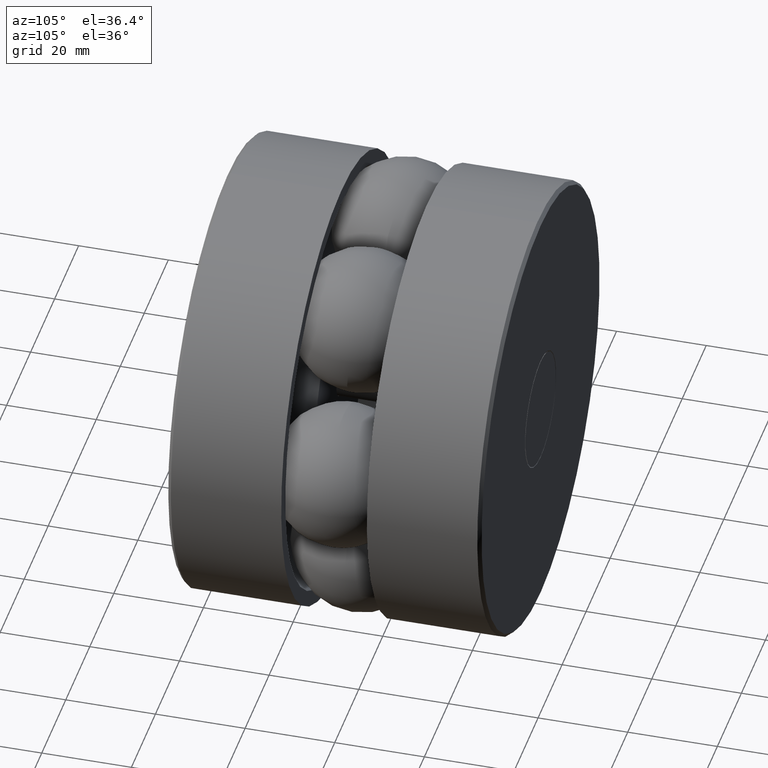
[diagram: clean part render]
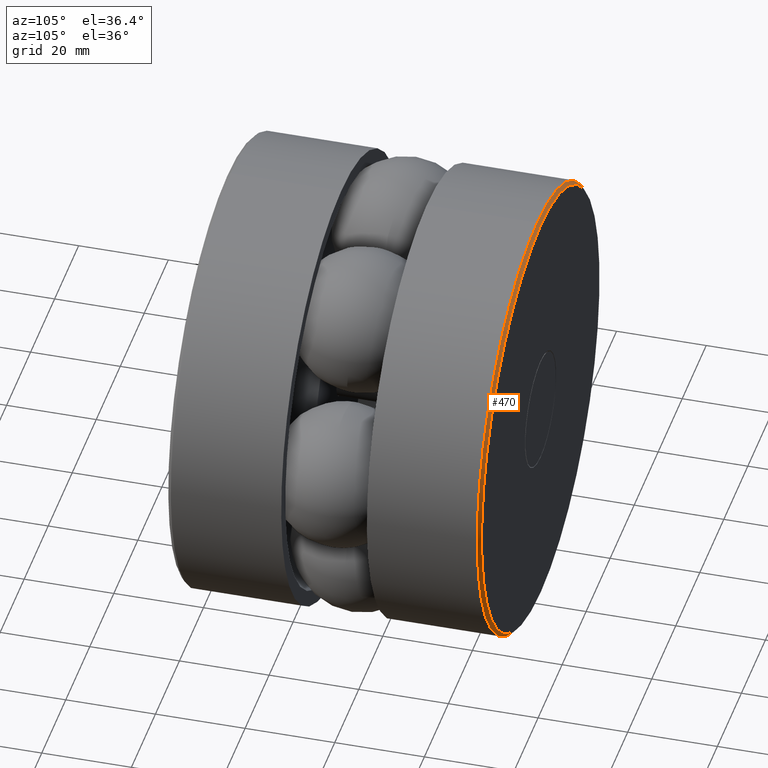
[diagram: same view with one face highlighted and labeled with its STEP entity id]
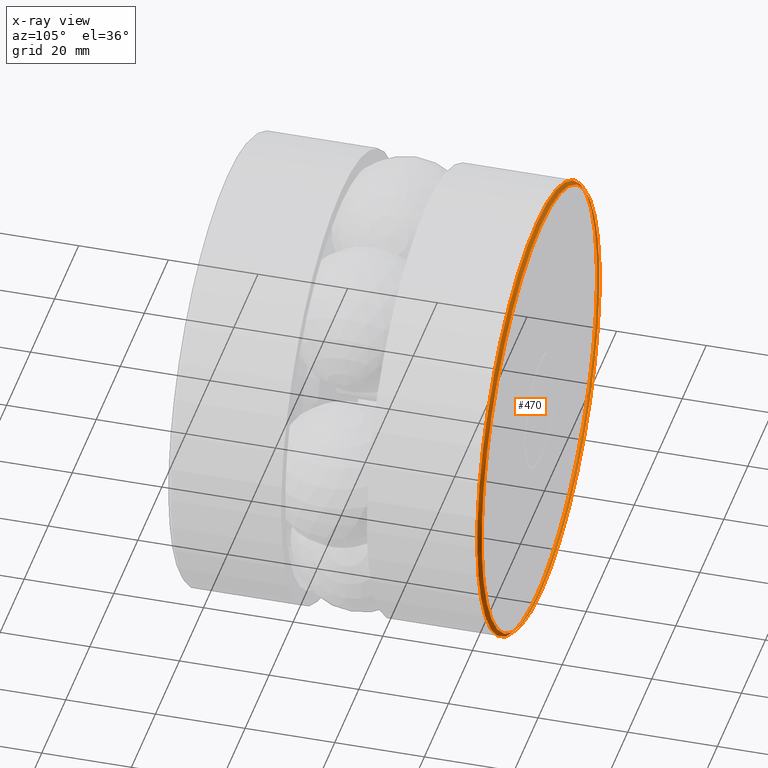
[diagram: x-ray of the same camera — body ghosted, the highlighted face saturated]
A machine part, auxiliary view. The second image highlights one B-rep face of the part: STEP entity #470.
The next image is the same camera in x-ray: the body ghosted, the highlighted face saturated — about 0% of this face is hidden behind the body in this view.
In plain terms, the highlighted conical surface has half-angle 45 deg.
Its self-contained STEP definition (entity closure, byte-faithful):
#22 = CIRCLE ( 'NONE', #81, 1.962000000000000000 ) ;
#39 = DIRECTION ( 'NONE',  ( 0.0000000000000000000, -1.000000000000000000, 0.0000000000000000000 ) ) ;
#41 = DIRECTION ( 'NONE',  ( -0.0000000000000000000, 1.000000000000000000, -0.0000000000000000000 ) ) ;
#66 = AXIS2_PLACEMENT_3D ( 'NONE', #168, #41, #507 ) ;
#81 = AXIS2_PLACEMENT_3D ( 'NONE', #345, #96, #426 ) ;
#83 = CIRCLE ( 'NONE', #66, 1.932000000000000400 ) ;
#96 = DIRECTION ( 'NONE',  ( -0.0000000000000000000, 1.000000000000000000, -0.0000000000000000000 ) ) ;
#160 = CARTESIAN_POINT ( 'NONE',  ( 0.0000000000000000000, 2.750000000000000000, 1.932000000000000400 ) ) ;
#168 = CARTESIAN_POINT ( 'NONE',  ( 0.0000000000000000000, 2.750000000000000000, 0.0000000000000000000 ) ) ;
#251 = DIRECTION ( 'NONE',  ( 0.0000000000000000000, 0.0000000000000000000, -1.000000000000000000 ) ) ;
#264 = ORIENTED_EDGE ( 'NONE', *, *, #288, .T. ) ;
#288 = EDGE_CURVE ( 'NONE', #482, #482, #22, .T. ) ;
#289 = EDGE_LOOP ( 'NONE', ( #450 ) ) ;
#291 = CARTESIAN_POINT ( 'NONE',  ( 0.0000000000000000000, 2.750000000000000000, 0.0000000000000000000 ) ) ;
#329 = FACE_OUTER_BOUND ( 'NONE', #461, .T. ) ;
#345 = CARTESIAN_POINT ( 'NONE',  ( 0.0000000000000000000, 2.719999999999999300, 0.0000000000000000000 ) ) ;
#349 = AXIS2_PLACEMENT_3D ( 'NONE', #291, #39, #251 ) ;
#356 = EDGE_CURVE ( 'NONE', #368, #368, #83, .T. ) ;
#368 = VERTEX_POINT ( 'NONE', #160 ) ;
#426 = DIRECTION ( 'NONE',  ( 0.0000000000000000000, 0.0000000000000000000, 1.000000000000000000 ) ) ;
#431 = FACE_BOUND ( 'NONE', #289, .T. ) ;
#450 = ORIENTED_EDGE ( 'NONE', *, *, #356, .F. ) ;
#454 = CARTESIAN_POINT ( 'NONE',  ( 0.0000000000000000000, 2.719999999999999300, 1.962000000000000000 ) ) ;
#461 = EDGE_LOOP ( 'NONE', ( #264 ) ) ;
#470 = ADVANCED_FACE ( 'NONE', ( #329, #431 ), #540, .T. ) ;
#482 = VERTEX_POINT ( 'NONE', #454 ) ;
#507 = DIRECTION ( 'NONE',  ( 0.0000000000000000000, 0.0000000000000000000, 1.000000000000000000 ) ) ;
#540 = CONICAL_SURFACE ( 'NONE', #349, 1.932000000000000400, 0.7853981633974346200 ) ;